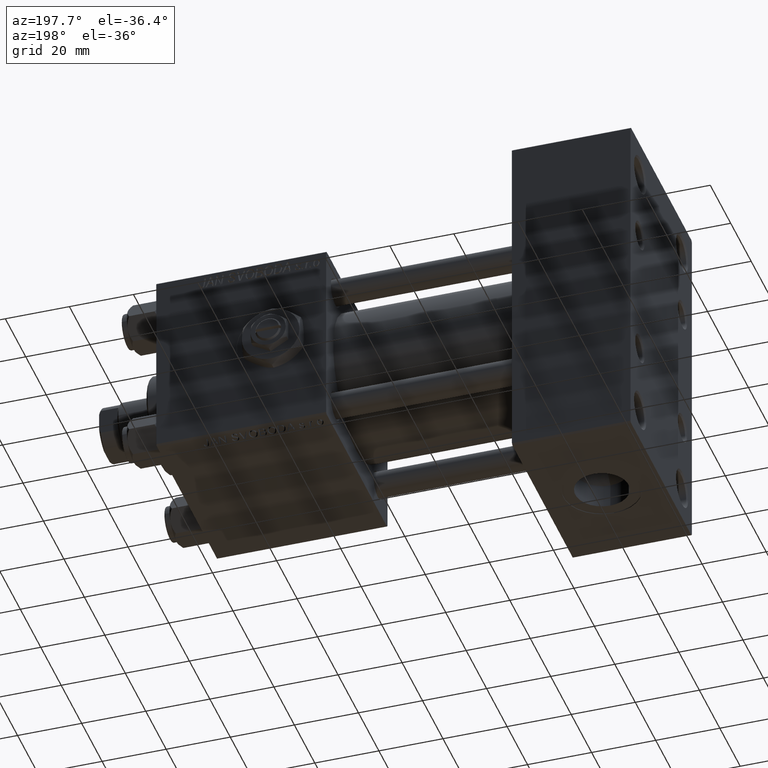
[diagram: clean part render]
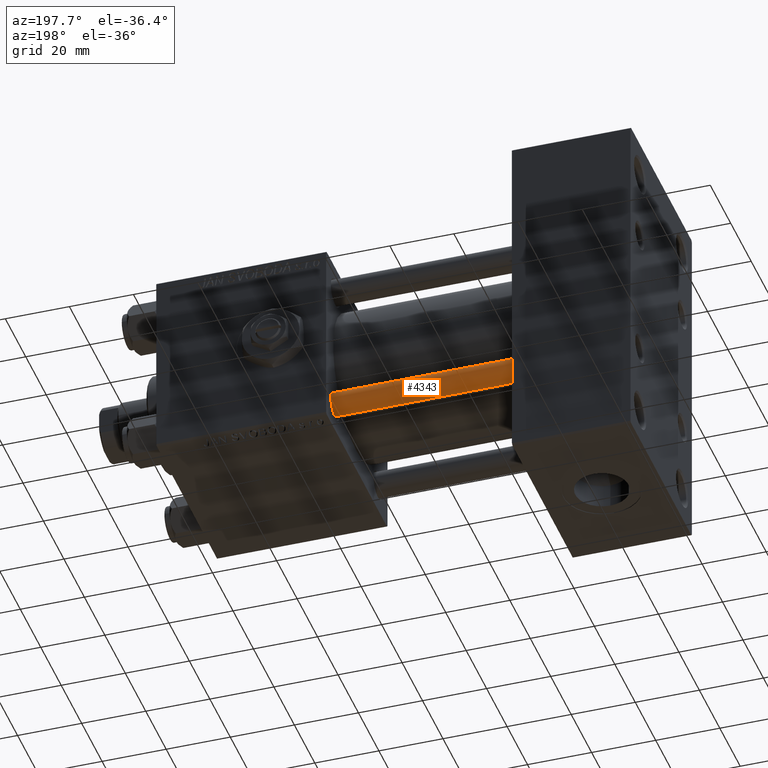
[diagram: same view with one face highlighted and labeled with its STEP entity id]
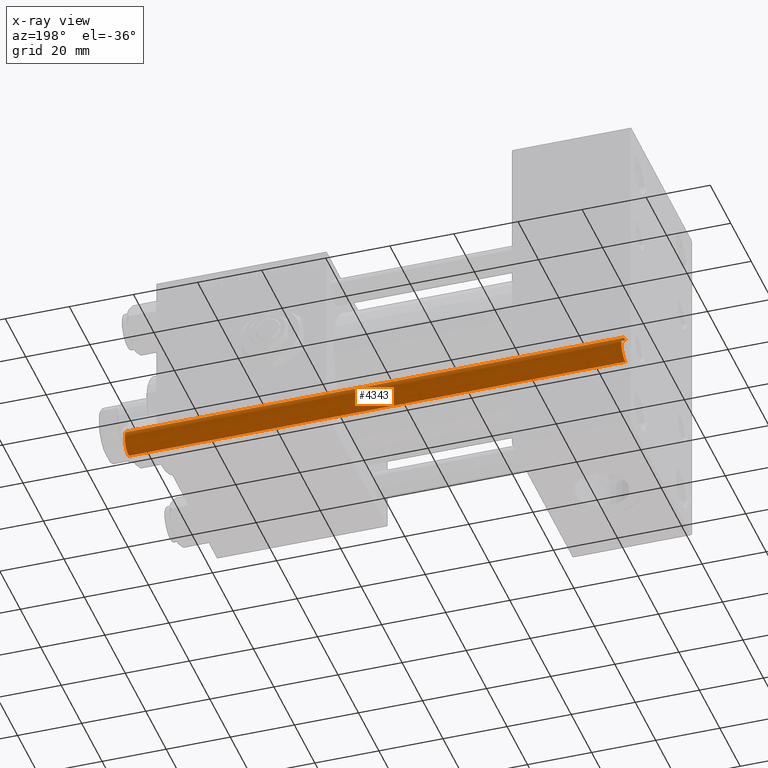
[diagram: x-ray of the same camera — body ghosted, the highlighted face saturated]
A machine part, auxiliary view. The second image highlights one B-rep face of the part: STEP entity #4343.
The next image is the same camera in x-ray: the body ghosted, the highlighted face saturated — about 0% of this face is hidden behind the body in this view.
In plain terms, the highlighted cylindrical surface (edge-blend (fillet) strip) has radius 4 mm, axis along (-1, 0, 0).
Its self-contained STEP definition (entity closure, byte-faithful):
#1991 = FACE_OUTER_BOUND ( 'NONE', #4247, .T. ) ;
#2129 = CARTESIAN_POINT ( 'NONE',  ( 4.000000000000000000, 4.898587196589412829E-16, 0.5000000000000281997 ) ) ;
#3491 = LINE ( 'NONE', #39098, #35391 ) ;
#3763 = DIRECTION ( 'NONE',  ( 0.000000000000000000, 0.000000000000000000, -1.000000000000000000 ) ) ;
#4180 = LINE ( 'NONE', #43489, #46054 ) ;
#4247 = EDGE_LOOP ( 'NONE', ( #15260, #28279, #21029, #16320 ) ) ;
#4343 = ADVANCED_FACE ( 'NONE', ( #1991 ), #38110, .T. ) ;
#7917 = EDGE_CURVE ( 'NONE', #22564, #41362, #30911, .T. ) ;
#8083 = EDGE_CURVE ( 'NONE', #16091, #22564, #4180, .T. ) ;
#8339 = AXIS2_PLACEMENT_3D ( 'NONE', #25436, #30643, #26469 ) ;
#8713 = CARTESIAN_POINT ( 'NONE',  ( 0.000000000000000000, 0.000000000000000000, 155.5000000000000284 ) ) ;
#9841 = DIRECTION ( 'NONE',  ( -1.000000000000000000, 0.000000000000000000, 0.000000000000000000 ) ) ;
#11589 = AXIS2_PLACEMENT_3D ( 'NONE', #13763, #45730, #9841 ) ;
#11646 = CARTESIAN_POINT ( 'NONE',  ( 4.000000000000000000, 4.898587196589412829E-16, 155.5000000000000284 ) ) ;
#13763 = CARTESIAN_POINT ( 'NONE',  ( 0.000000000000000000, 0.000000000000000000, 156.0000000000000000 ) ) ;
#15260 = ORIENTED_EDGE ( 'NONE', *, *, #47821, .F. ) ;
#15950 = DIRECTION ( 'NONE',  ( -0.000000000000000000, -0.000000000000000000, -1.000000000000000000 ) ) ;
#16091 = VERTEX_POINT ( 'NONE', #42972 ) ;
#16320 = ORIENTED_EDGE ( 'NONE', *, *, #7917, .T. ) ;
#19723 = DIRECTION ( 'NONE',  ( -0.000000000000000000, -0.000000000000000000, -1.000000000000000000 ) ) ;
#21029 = ORIENTED_EDGE ( 'NONE', *, *, #8083, .T. ) ;
#22564 = VERTEX_POINT ( 'NONE', #22864 ) ;
#22864 = CARTESIAN_POINT ( 'NONE',  ( -4.000000000000000000, 0.000000000000000000, 0.5000000000000281997 ) ) ;
#25436 = CARTESIAN_POINT ( 'NONE',  ( 0.000000000000000000, 0.000000000000000000, 0.5000000000000281997 ) ) ;
#26469 = DIRECTION ( 'NONE',  ( 1.000000000000000000, 0.000000000000000000, 0.000000000000000000 ) ) ;
#28279 = ORIENTED_EDGE ( 'NONE', *, *, #37135, .T. ) ;
#30643 = DIRECTION ( 'NONE',  ( -0.000000000000000000, -0.000000000000000000, 1.000000000000000000 ) ) ;
#30911 = CIRCLE ( 'NONE', #8339, 4.000000000000000000 ) ;
#34581 = VERTEX_POINT ( 'NONE', #11646 ) ;
#35391 = VECTOR ( 'NONE', #19723, 1000.000000000000000 ) ;
#35681 = DIRECTION ( 'NONE',  ( 1.000000000000000000, 0.000000000000000000, 0.000000000000000000 ) ) ;
#37135 = EDGE_CURVE ( 'NONE', #34581, #16091, #39793, .T. ) ;
#37294 = AXIS2_PLACEMENT_3D ( 'NONE', #8713, #3763, #35681 ) ;
#38110 = CYLINDRICAL_SURFACE ( 'NONE', #11589, 4.000000000000000000 ) ;
#39098 = CARTESIAN_POINT ( 'NONE',  ( 4.000000000000000000, 4.898587196589412829E-16, 156.0000000000000000 ) ) ;
#39793 = CIRCLE ( 'NONE', #37294, 4.000000000000000000 ) ;
#41362 = VERTEX_POINT ( 'NONE', #2129 ) ;
#42972 = CARTESIAN_POINT ( 'NONE',  ( -4.000000000000000000, 0.000000000000000000, 155.5000000000000284 ) ) ;
#43489 = CARTESIAN_POINT ( 'NONE',  ( -4.000000000000000000, 0.000000000000000000, 156.0000000000000000 ) ) ;
#45730 = DIRECTION ( 'NONE',  ( -0.000000000000000000, -0.000000000000000000, -1.000000000000000000 ) ) ;
#46054 = VECTOR ( 'NONE', #15950, 1000.000000000000000 ) ;
#47821 = EDGE_CURVE ( 'NONE', #34581, #41362, #3491, .T. ) ;